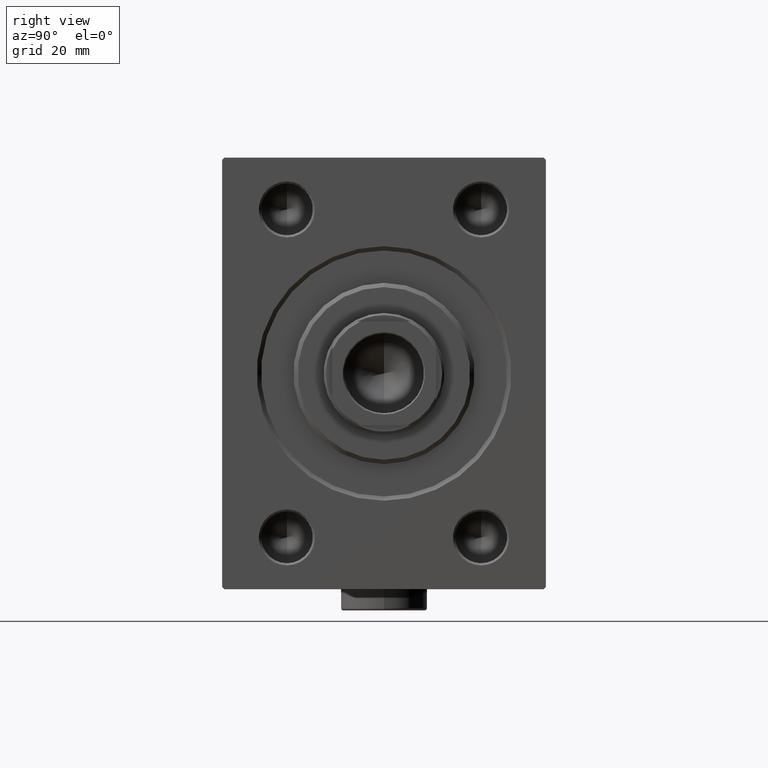
[diagram: clean part render]
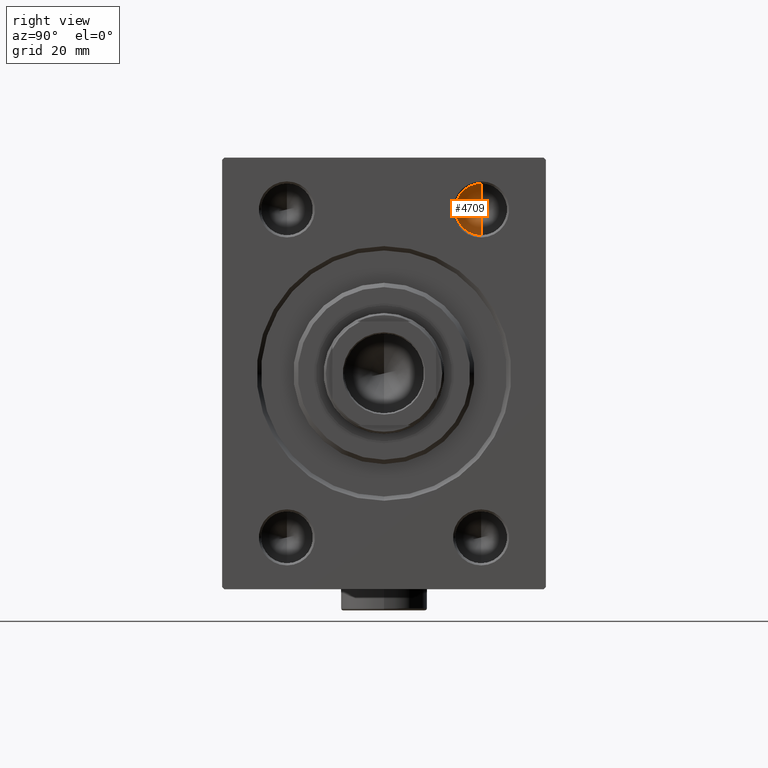
[diagram: same view with one face highlighted and labeled with its STEP entity id]
A machine part, right view. The second image highlights one B-rep face of the part: STEP entity #4709.
In plain terms, the highlighted conical surface has half-angle 59 deg.
Its self-contained STEP definition (entity closure, byte-faithful):
#1805 = VERTEX_POINT ( 'NONE', #43265 ) ;
#2623 = EDGE_LOOP ( 'NONE', ( #41866, #35867, #39442 ) ) ;
#2915 = VERTEX_POINT ( 'NONE', #10326 ) ;
#3865 = VECTOR ( 'NONE', #30560, 1000.000000000000000 ) ;
#4709 = ADVANCED_FACE ( 'NONE', ( #22362 ), #13567, .F. ) ;
#5327 = AXIS2_PLACEMENT_3D ( 'NONE', #29606, #43862, #36615 ) ;
#6466 = DIRECTION ( 'NONE',  ( -0.5150380749100547106, 1.049727191138618326E-16, -0.8571673007021120005 ) ) ;
#8189 = DIRECTION ( 'NONE',  ( 0.000000000000000000, 0.000000000000000000, 1.000000000000000000 ) ) ;
#10326 = CARTESIAN_POINT ( 'NONE',  ( 20.00000000000000000, 22.49999999999999289, -32.00000000000000000 ) ) ;
#11934 = CARTESIAN_POINT ( 'NONE',  ( 20.00000000000000000, 22.49999999999999289, -38.00000000000000000 ) ) ;
#13567 = CONICAL_SURFACE ( 'NONE', #5327, 5.999999999999998224, 1.029744258676653867 ) ;
#13630 = VERTEX_POINT ( 'NONE', #17853 ) ;
#13946 = CARTESIAN_POINT ( 'NONE',  ( 20.00000000000000000, 22.49999999999999289, -44.00000000000000000 ) ) ;
#14061 = VECTOR ( 'NONE', #6466, 1000.000000000000000 ) ;
#17853 = CARTESIAN_POINT ( 'NONE',  ( 20.00000000000000000, 22.49999999999999289, -44.00000000000000000 ) ) ;
#18157 = LINE ( 'NONE', #13946, #14061 ) ;
#19580 = LINE ( 'NONE', #23311, #3865 ) ;
#22362 = FACE_OUTER_BOUND ( 'NONE', #2623, .T. ) ;
#23311 = CARTESIAN_POINT ( 'NONE',  ( 20.00000000000000000, 22.49999999999999289, -32.00000000000000000 ) ) ;
#26267 = CIRCLE ( 'NONE', #33750, 5.999999999999998224 ) ;
#29606 = CARTESIAN_POINT ( 'NONE',  ( 20.00000000000000000, 22.49999999999999289, -38.00000000000000000 ) ) ;
#30560 = DIRECTION ( 'NONE',  ( -0.5150380749100547106, 0.000000000000000000, 0.8571673007021120005 ) ) ;
#31665 = EDGE_CURVE ( 'NONE', #1805, #13630, #18157, .T. ) ;
#33750 = AXIS2_PLACEMENT_3D ( 'NONE', #11934, #40237, #8189 ) ;
#35867 = ORIENTED_EDGE ( 'NONE', *, *, #31665, .T. ) ;
#36615 = DIRECTION ( 'NONE',  ( 0.000000000000000000, 0.000000000000000000, 1.000000000000000000 ) ) ;
#39442 = ORIENTED_EDGE ( 'NONE', *, *, #46128, .T. ) ;
#40237 = DIRECTION ( 'NONE',  ( -1.000000000000000000, -0.000000000000000000, -0.000000000000000000 ) ) ;
#41746 = EDGE_CURVE ( 'NONE', #1805, #2915, #19580, .T. ) ;
#41866 = ORIENTED_EDGE ( 'NONE', *, *, #41746, .F. ) ;
#43265 = CARTESIAN_POINT ( 'NONE',  ( 23.60516371416536074, 22.49999999999998579, -38.00000000000000000 ) ) ;
#43862 = DIRECTION ( 'NONE',  ( -1.000000000000000000, -0.000000000000000000, -0.000000000000000000 ) ) ;
#46128 = EDGE_CURVE ( 'NONE', #13630, #2915, #26267, .T. ) ;